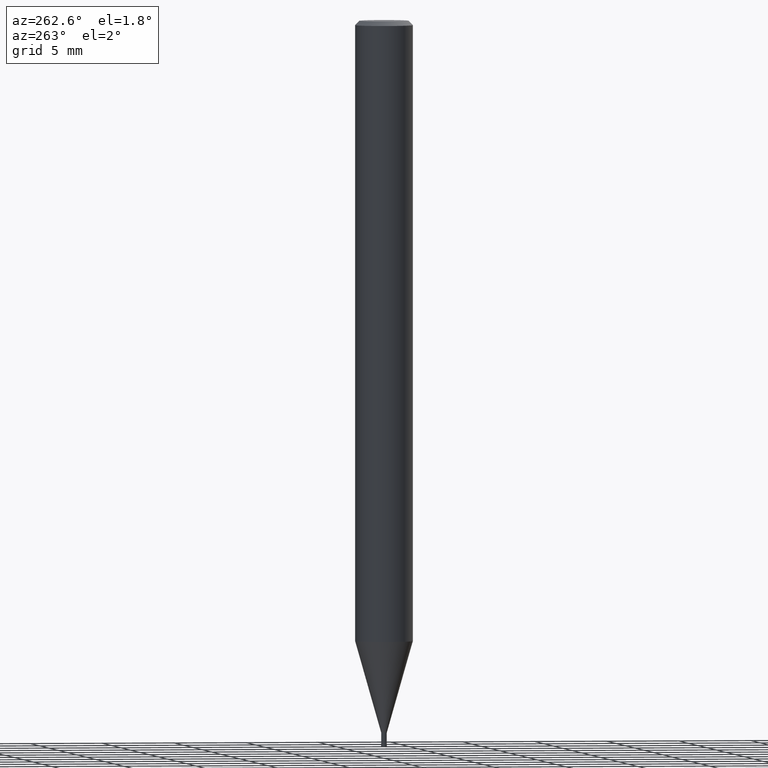
[diagram: clean part render]
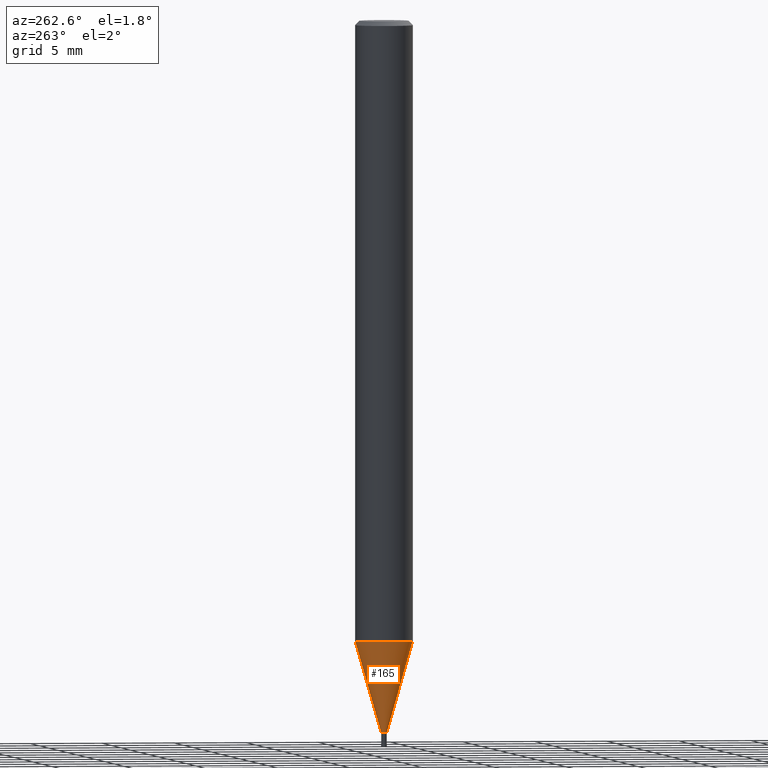
[diagram: same view with one face highlighted and labeled with its STEP entity id]
A machine part, auxiliary view. The second image highlights one B-rep face of the part: STEP entity #165.
In plain terms, the highlighted conical surface has half-angle 15.999 deg.
Its self-contained STEP definition (entity closure, byte-faithful):
#149=EDGE_CURVE('',#209,#199,#386,.T.);
#165=ADVANCED_FACE('',(#405),#406,.T.);
#185=EDGE_CURVE('',#321,#209,#429,.T.);
#199=VERTEX_POINT('',#443);
#209=VERTEX_POINT('',#454);
#225=EDGE_CURVE('',#199,#337,#472,.T.);
#229=EDGE_CURVE('',#321,#337,#476,.T.);
#321=VERTEX_POINT('',#581);
#337=VERTEX_POINT('',#597);
#386=CIRCLE('',#645,1.99995);
#405=FACE_OUTER_BOUND('',#668,.T.);
#406=CONICAL_SURFACE('',#669,1.0962,0.279231732547063);
#429=LINE('',#699,#700);
#443=CARTESIAN_POINT('',(0.0,1.99995,-42.686));
#454=CARTESIAN_POINT('',(2.44915147732706E-016,-1.99995,-42.686));
#472=LINE('',#756,#757);
#476=CIRCLE('',#762,0.19245);
#581=CARTESIAN_POINT('',(2.35675492793117E-017,-0.19245,-48.99));
#597=CARTESIAN_POINT('',(0.0,0.19245,-48.99));
#645=AXIS2_PLACEMENT_3D('',#962,#963,#964);
#668=EDGE_LOOP('',(#997,#998,#999,#1000));
#669=AXIS2_PLACEMENT_3D('',#1001,#1002,#1003);
#699=CARTESIAN_POINT('',(1.34241348506009E-016,-1.0962,-45.838));
#700=VECTOR('',#1036,1.0);
#756=CARTESIAN_POINT('',(-1.34241348506009E-016,1.0962,-45.838));
#757=VECTOR('',#1079,1.0);
#762=AXIS2_PLACEMENT_3D('',#1080,#1081,#1082);
#962=CARTESIAN_POINT('',(0.0,0.0,-42.686));
#963=DIRECTION('',(0.0,0.0,-1.0));
#964=DIRECTION('',(0.0,1.0,0.0));
#997=ORIENTED_EDGE('',*,*,#225,.T.);
#998=ORIENTED_EDGE('',*,*,#229,.F.);
#999=ORIENTED_EDGE('',*,*,#185,.T.);
#1000=ORIENTED_EDGE('',*,*,#149,.T.);
#1001=CARTESIAN_POINT('',(0.0,0.0,-45.838));
#1002=DIRECTION('',(-0.0,-0.0,1.0));
#1003=DIRECTION('',(0.0,1.0,0.0));
#1036=DIRECTION('',(3.375225981805E-017,-0.275617219465657,0.961267469715906));
#1079=DIRECTION('',(3.375225981805E-017,-0.275617219465657,-0.961267469715906));
#1080=CARTESIAN_POINT('',(0.0,0.0,-48.99));
#1081=DIRECTION('',(0.0,0.0,-1.0));
#1082=DIRECTION('',(0.0,1.0,0.0));